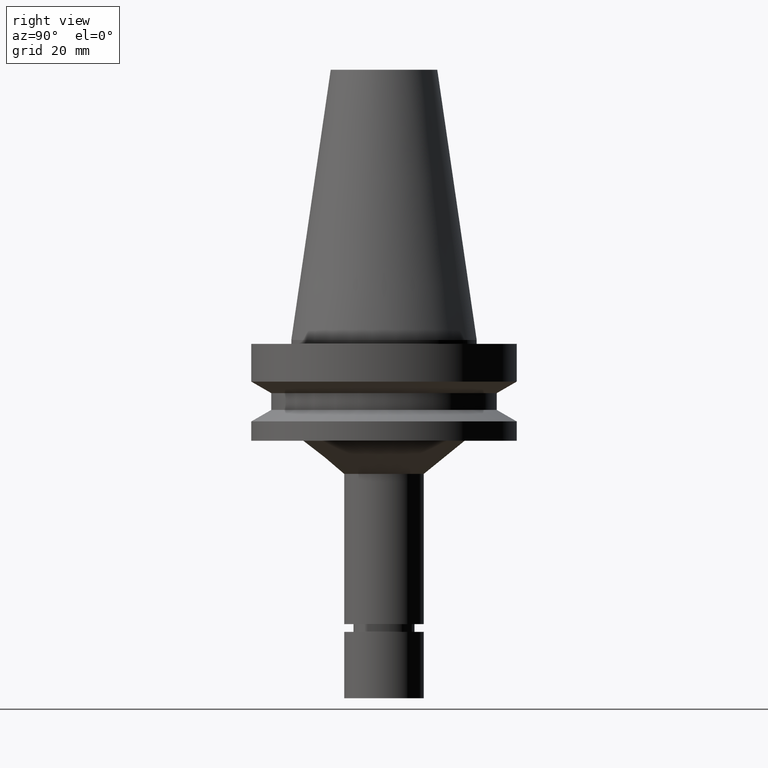
[diagram: clean part render]
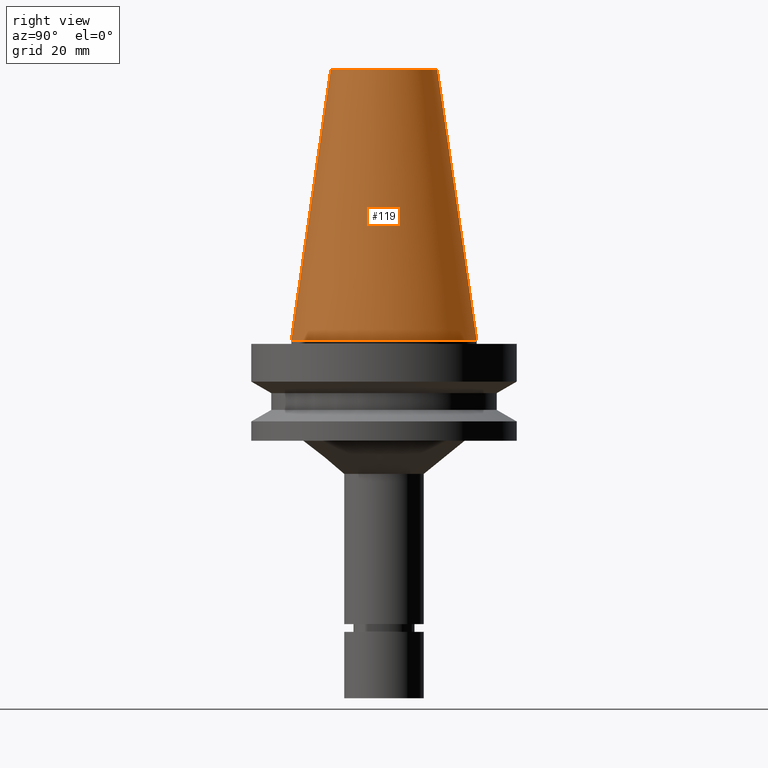
[diagram: same view with one face highlighted and labeled with its STEP entity id]
A machine part, right view. The second image highlights one B-rep face of the part: STEP entity #119.
In plain terms, the highlighted conical surface has half-angle 8.297 deg.
Its self-contained STEP definition (entity closure, byte-faithful):
#85=EDGE_CURVE('Unnamed[1]',#216,#216,#217,.T.);
#119=ADVANCED_FACE('Unnamed[1]',(#268,#269),#270,.T.);
#149=EDGE_CURVE('Unnamed[1]',#313,#313,#314,.T.);
#216=VERTEX_POINT('',#396);
#217=CIRCLE('',#397,20.0791666651884);
#268=FACE_BOUND('',#459,.T.);
#269=FACE_BOUND('',#460,.T.);
#270=CONICAL_SURFACE('',#461,27.5020833325942,0.144812498253157);
#313=VERTEX_POINT('',#516);
#314=CIRCLE('',#517,34.925);
#396=CARTESIAN_POINT('',(-6.23345220766003E-015,20.0791666651884,101.8));
#397=AXIS2_PLACEMENT_3D('',#597,#598,#599);
#459=EDGE_LOOP('',(#655));
#460=EDGE_LOOP('',(#656));
#461=AXIS2_PLACEMENT_3D('',#657,#658,#659);
#516=CARTESIAN_POINT('',(-4.30483861169435E-031,34.925,4.27707894602213E-015));
#517=AXIS2_PLACEMENT_3D('',#702,#703,#704);
#597=CARTESIAN_POINT('',(-6.23345220766003E-015,1.30258929046129E-014,101.8));
#598=DIRECTION('',(-6.12323399573677E-017,-1.5261999847694E-017,1.0));
#599=DIRECTION('',(-5.76168069387341E-033,1.0,1.5261999847694E-017));
#655=ORIENTED_EDGE('',*,*,#85,.F.);
#656=ORIENTED_EDGE('',*,*,#149,.T.);
#657=CARTESIAN_POINT('',(-3.11672610383001E-015,1.38027286968626E-014,50.9));
#658=DIRECTION('',(6.12323399573677E-017,1.52619998476919E-017,-1.0));
#659=DIRECTION('',(-5.76168069387379E-033,1.0,1.52619998476919E-017));
#702=CARTESIAN_POINT('',(-1.79707006884519E-046,1.45795644891122E-014,1.78548169845537E-030));
#703=DIRECTION('',(-6.12323399573677E-017,-1.52619998477369E-017,1.0));
#704=DIRECTION('',(-5.76168069387914E-033,1.0,1.52619998477369E-017));